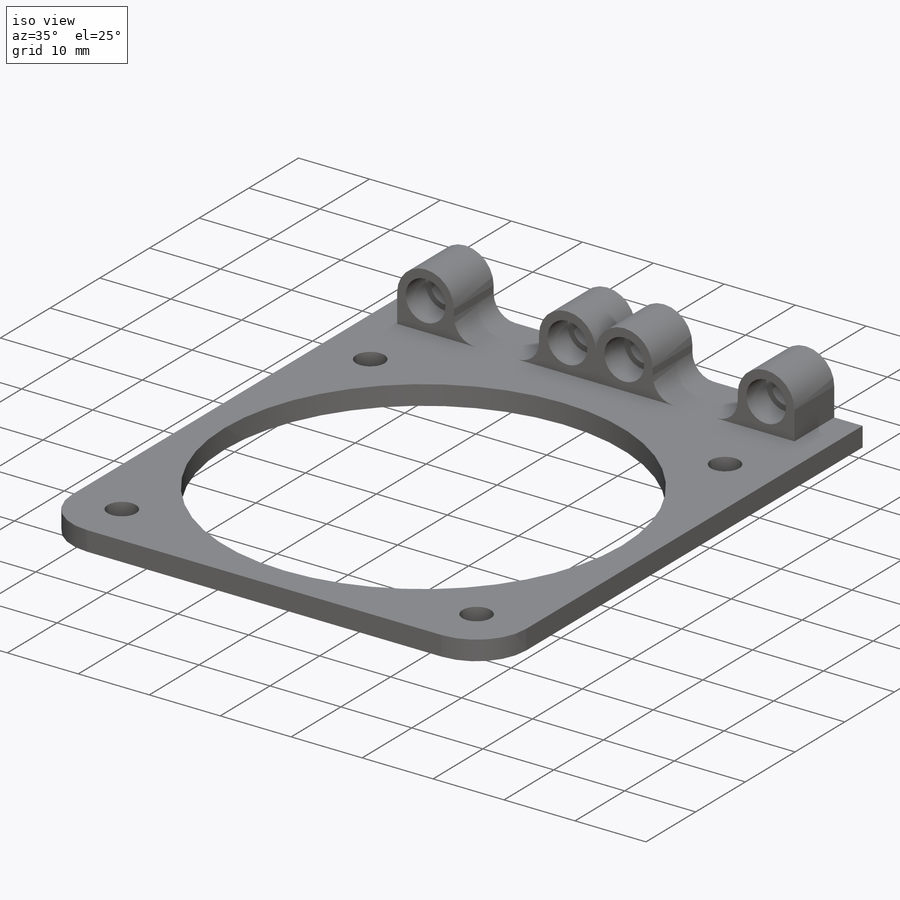
[diagram: iso view]
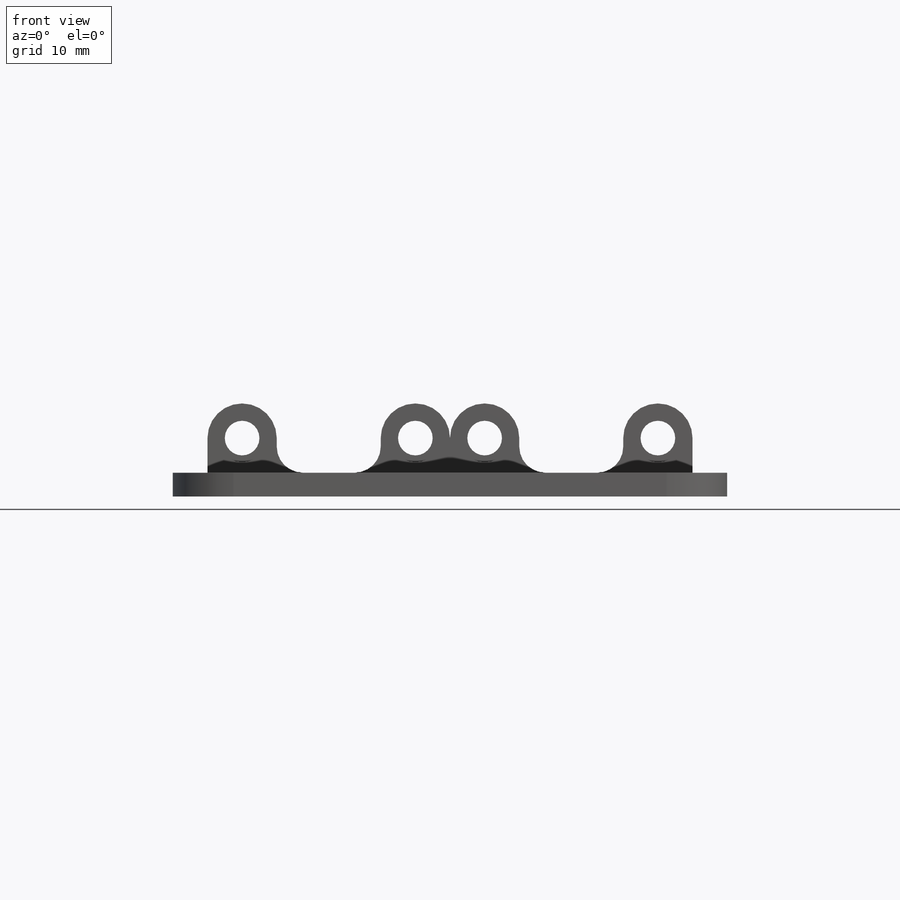
[diagram: front view]
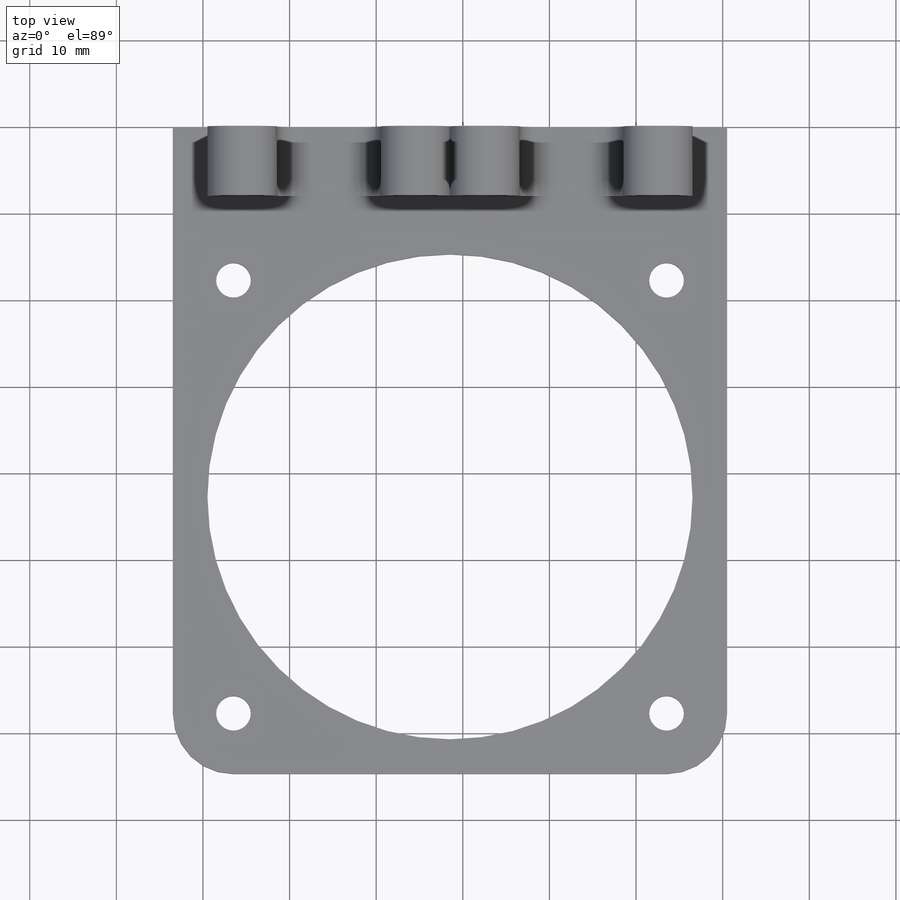
[diagram: top view]
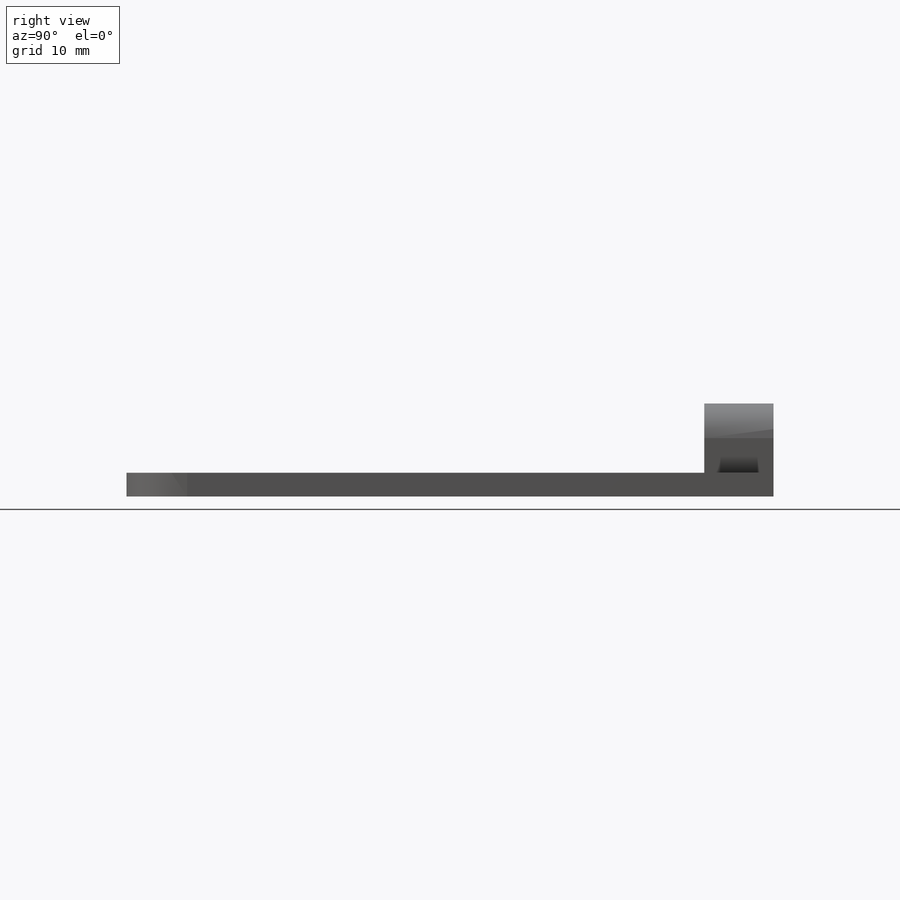
[diagram: right view]
SOLIDWORKS PART (.sldprt)
format: sldprt  version: not decoded by parser v0  size: 484,352 bytes
history: native  units: mm
features: sketch x14, cut_extrude x8, fillet x7, extrude x5, plane x3, material x1 (+9 scaffold rows collapsed)
feature tree (47):
  scaffold x9  (default folders/planes/origin — collapsed)
  material  "Materiale <non specificato>"
  plane  "Piano frontale"
  plane  "Piano superiore"
  plane  "Piano destro"
  sketch  "Schizzo1"  dims[D8=~3.781799mm D1=56.0mm D2=2.75mm D3=6.75mm D4=4.0mm D5=4.0mm D6=20.0mm D7=20.0mm]
  extrude  "Estrusione-Estrusione1"  Depth=8mm
  sketch  "Schizzo3"
  extrude  "Estrusione-Estrusione3"  Depth=55mm
  fillet  "Raccordo1"  Radius=4mm
  sketch  "Schizzo4"
  cut_extrude  "Taglio-Estrusione1"  Depth=4mm
  sketch  "Schizzo5"
  cut_extrude  "Taglio-Estrusione2"  Depth=4mm
  fillet  "Raccordo2"  Radius=124mm
  sketch  "Schizzo6"  dims[D1=5.6mm D2=5.6mm D3=5.6mm D4=5.6mm]
  cut_extrude  "Taglio-Estrusione3"  Depth=4mm
  sketch  "Schizzo7"  dims[c1.D1=32.0mm c1.D2=32.0mm c1.D3=66.0mm c1.D4=6.7mm c2.D1=28.0mm]
  extrude  "Estrusione-Estrusione4"  Depth=4mm
  sketch  "Schizzo8"
  cut_extrude  "Taglio-Estrusione4"  Depth=10mm
  sketch  "Schizzo9"  dims[D3=~1.194734mm D1=25.0mm D2=25.0mm]
  cut_extrude  "Taglio-Estrusione5"  Depth=4mm
  fillet  "Raccordo3"  Radius=3mm
  fillet  "Raccordo4"  Radius=3mm
  fillet  "Raccordo5"  Radius=3mm
  sketch  "Schizzo10"
  cut_extrude  "Taglio-Estrusione6"  [1 undecoded]
  sketch  "Schizzo11"  dims[D1=2.75mm D2=58.0mm]
  extrude  "Estrusione-Estrusione5"  Depth=0.7mm
  fillet  "Raccordo6"  Radius=7mm
  fillet  "Raccordo8"  Radius=7mm
  sketch  "Schizzo12"  dims[c1.D1=~11.748329mm c1.D2=~64.021627mm c2.D1=64.0mm]
  extrude  "Estrusione-Estrusione6"  Depth=4mm
  sketch  "Schizzo13"  dims[D1=~7.000002mm]
  sketch  "Schizzo14"  dims[c1.D1=~7.000002mm c1.D2=~25.727909mm c2.D1=0.3mm]
  cut_extrude  "Taglio-Estrusione7"  Depth=4mm
  sketch  "Schizzo15"  dims[D1=~14.540634mm D2=64.0mm]
  cut_extrude  "Taglio-Estrusione8"  [1 undecoded]
decode coverage: 27 of 34 modeling features carry decoded parameters
note: ~ marks probable driven/reference dimensions
note: 2 parameter values undecoded
note: suppression state not decoded; provenance and decode notes live in map.json
